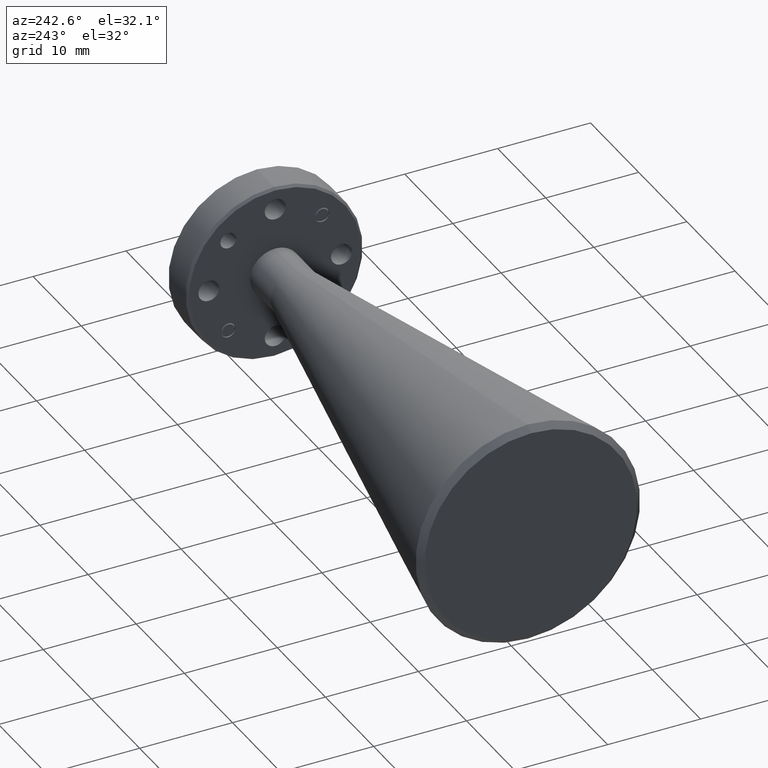
[diagram: clean part render]
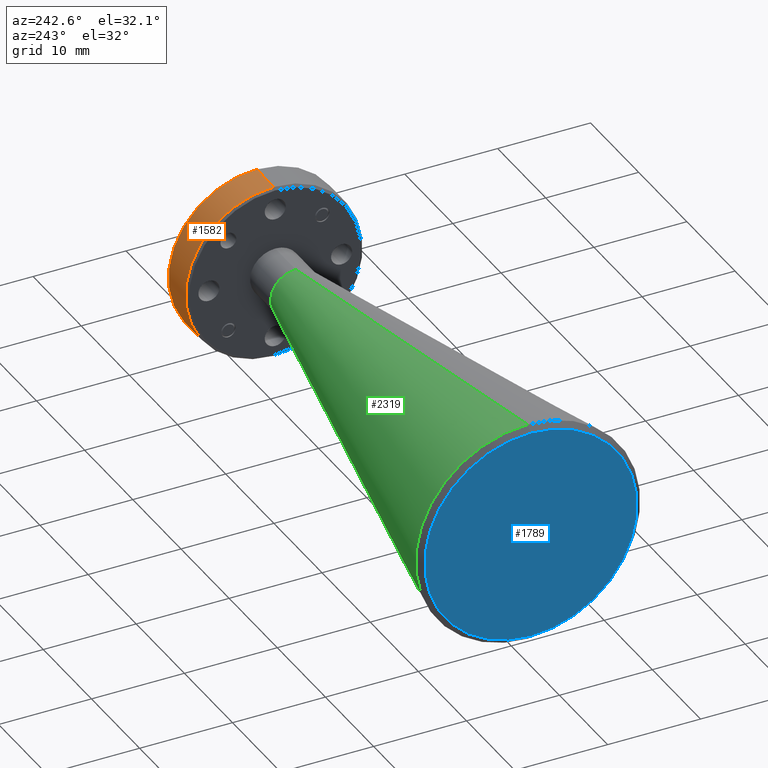
[diagram: same view with three faces highlighted in distinct colors, each labeled with its STEP entity id]
A machine part, auxiliary view with three faces highlighted in distinct colors.
Their STEP definitions:

[orange] entity #1582 — the highlighted cylindrical surface (partial cylindrical patch) has radius 9.525 mm, axis along (1, -0, -0).
#42 = AXIS2_PLACEMENT_3D ( 'NONE', #1292, #2041, #1854 ) ;
#125 = LINE ( 'NONE', #859, #965 ) ;
#168 = EDGE_LOOP ( 'NONE', ( #427, #176, #497, #2033 ) ) ;
#176 = ORIENTED_EDGE ( 'NONE', *, *, #1196, .T. ) ;
#191 = VERTEX_POINT ( 'NONE', #1648 ) ;
#222 = DIRECTION ( 'NONE',  ( 0.000000000000000000, 0.000000000000000000, -1.000000000000000000 ) ) ;
#427 = ORIENTED_EDGE ( 'NONE', *, *, #1452, .T. ) ;
#497 = ORIENTED_EDGE ( 'NONE', *, *, #1795, .T. ) ;
#618 = CIRCLE ( 'NONE', #42, 0.3749999999999999445 ) ;
#634 = CARTESIAN_POINT ( 'NONE',  ( 1.789620190425750046, 1.132380905805825178, 1.254287461640205992 ) ) ;
#647 = DIRECTION ( 'NONE',  ( 1.000000000000000000, -0.000000000000000000, -0.000000000000000000 ) ) ;
#829 = DIRECTION ( 'NONE',  ( 1.000000000000000000, -0.000000000000000000, -0.000000000000000000 ) ) ;
#859 = CARTESIAN_POINT ( 'NONE',  ( 1.789620190425750046, 1.132380905805825178, 1.629287461640205992 ) ) ;
#896 = CIRCLE ( 'NONE', #2093, 0.3749999999999999445 ) ;
#935 = VECTOR ( 'NONE', #647, 39.37007874015748143 ) ;
#965 = VECTOR ( 'NONE', #829, 39.37007874015748143 ) ;
#1196 = EDGE_CURVE ( 'NONE', #191, #1227, #125, .T. ) ;
#1217 = FACE_OUTER_BOUND ( 'NONE', #168, .T. ) ;
#1227 = VERTEX_POINT ( 'NONE', #2102 ) ;
#1292 = CARTESIAN_POINT ( 'NONE',  ( 1.639620190425750357, 1.132380905805825178, 1.254287461640205992 ) ) ;
#1301 = CARTESIAN_POINT ( 'NONE',  ( 1.779620190425750481, 1.132380905805825178, 1.254287461640205992 ) ) ;
#1452 = EDGE_CURVE ( 'NONE', #1563, #191, #618, .T. ) ;
#1563 = VERTEX_POINT ( 'NONE', #2119 ) ;
#1570 = LINE ( 'NONE', #2279, #935 ) ;
#1582 = ADVANCED_FACE ( 'NONE', ( #1217 ), #1934, .T. ) ;
#1648 = CARTESIAN_POINT ( 'NONE',  ( 1.639620190425750357, 1.132380905805825178, 1.629287461640205992 ) ) ;
#1709 = VERTEX_POINT ( 'NONE', #1779 ) ;
#1730 = DIRECTION ( 'NONE',  ( 0.000000000000000000, 0.000000000000000000, -1.000000000000000000 ) ) ;
#1779 = CARTESIAN_POINT ( 'NONE',  ( 1.779620190425750481, 1.132380905805825178, 0.8792874616402061028 ) ) ;
#1795 = EDGE_CURVE ( 'NONE', #1227, #1709, #896, .T. ) ;
#1854 = DIRECTION ( 'NONE',  ( 0.000000000000000000, 0.000000000000000000, 1.000000000000000000 ) ) ;
#1934 = CYLINDRICAL_SURFACE ( 'NONE', #2196, 0.3749999999999999445 ) ;
#2033 = ORIENTED_EDGE ( 'NONE', *, *, #2254, .F. ) ;
#2041 = DIRECTION ( 'NONE',  ( 1.000000000000000000, -0.000000000000000000, -0.000000000000000000 ) ) ;
#2093 = AXIS2_PLACEMENT_3D ( 'NONE', #1301, #2195, #222 ) ;
#2102 = CARTESIAN_POINT ( 'NONE',  ( 1.779620190425750481, 1.132380905805825178, 1.629287461640205992 ) ) ;
#2119 = CARTESIAN_POINT ( 'NONE',  ( 1.639620190425750357, 1.132380905805825178, 0.8792874616402061028 ) ) ;
#2129 = DIRECTION ( 'NONE',  ( 1.000000000000000000, -0.000000000000000000, -0.000000000000000000 ) ) ;
#2195 = DIRECTION ( 'NONE',  ( -1.000000000000000000, 0.000000000000000000, 0.000000000000000000 ) ) ;
#2196 = AXIS2_PLACEMENT_3D ( 'NONE', #634, #2129, #1730 ) ;
#2254 = EDGE_CURVE ( 'NONE', #1563, #1709, #1570, .T. ) ;
#2279 = CARTESIAN_POINT ( 'NONE',  ( 1.789620190425750046, 1.132380905805825178, 0.8792874616402061028 ) ) ;

[blue] entity #1789 — the highlighted planar face has unit normal (-1, 0, 0).
#149 = CIRCLE ( 'NONE', #1687, 0.4505000000000011218 ) ;
#198 = DIRECTION ( 'NONE',  ( 0.000000000000000000, 0.000000000000000000, 1.000000000000000000 ) ) ;
#344 = DIRECTION ( 'NONE',  ( 0.000000000000000000, 0.000000000000000000, 1.000000000000000000 ) ) ;
#416 = ORIENTED_EDGE ( 'NONE', *, *, #532, .T. ) ;
#454 = CARTESIAN_POINT ( 'NONE',  ( -0.4603798095742503982, 1.132380905805825178, 1.704787461640207225 ) ) ;
#524 = CARTESIAN_POINT ( 'NONE',  ( -0.4603798095742503982, 1.132380905805825178, 1.254287461640205992 ) ) ;
#529 = EDGE_CURVE ( 'NONE', #2019, #2335, #149, .T. ) ;
#532 = EDGE_CURVE ( 'NONE', #2335, #2019, #1620, .T. ) ;
#564 = PLANE ( 'NONE',  #1814 ) ;
#915 = FACE_OUTER_BOUND ( 'NONE', #1465, .T. ) ;
#960 = CARTESIAN_POINT ( 'NONE',  ( -0.4603798095742503982, 1.612880905805824883, 1.254287461640205992 ) ) ;
#1050 = DIRECTION ( 'NONE',  ( -1.000000000000000000, 0.000000000000000000, 0.000000000000000000 ) ) ;
#1448 = ORIENTED_EDGE ( 'NONE', *, *, #529, .T. ) ;
#1465 = EDGE_LOOP ( 'NONE', ( #1448, #416 ) ) ;
#1606 = DIRECTION ( 'NONE',  ( 0.000000000000000000, 0.000000000000000000, 1.000000000000000000 ) ) ;
#1620 = CIRCLE ( 'NONE', #1879, 0.4505000000000011218 ) ;
#1687 = AXIS2_PLACEMENT_3D ( 'NONE', #524, #1977, #344 ) ;
#1775 = CARTESIAN_POINT ( 'NONE',  ( -0.4603798095742503982, 1.132380905805825178, 0.8037874616402048700 ) ) ;
#1789 = ADVANCED_FACE ( 'NONE', ( #915 ), #564, .T. ) ;
#1814 = AXIS2_PLACEMENT_3D ( 'NONE', #960, #1825, #198 ) ;
#1825 = DIRECTION ( 'NONE',  ( -1.000000000000000000, 0.000000000000000000, 0.000000000000000000 ) ) ;
#1879 = AXIS2_PLACEMENT_3D ( 'NONE', #2299, #1050, #1606 ) ;
#1977 = DIRECTION ( 'NONE',  ( -1.000000000000000000, 0.000000000000000000, 0.000000000000000000 ) ) ;
#2019 = VERTEX_POINT ( 'NONE', #1775 ) ;
#2299 = CARTESIAN_POINT ( 'NONE',  ( -0.4603798095742503982, 1.132380905805825178, 1.254287461640205992 ) ) ;
#2335 = VERTEX_POINT ( 'NONE', #454 ) ;

[green] entity #2319 — the highlighted conical surface has half-angle 11 deg.
#16 = CIRCLE ( 'NONE', #2307, 0.1069999999999999840 ) ;
#121 = DIRECTION ( 'NONE',  ( 1.000000000000000000, -0.000000000000000000, -0.000000000000000000 ) ) ;
#126 = ORIENTED_EDGE ( 'NONE', *, *, #2349, .T. ) ;
#151 = CARTESIAN_POINT ( 'NONE',  ( 1.461111115390730797, 1.132380905805825178, 1.361287461640205976 ) ) ;
#156 = CONICAL_SURFACE ( 'NONE', #1959, 0.1069999999999999840, 0.1919862177193692176 ) ;
#242 = CARTESIAN_POINT ( 'NONE',  ( 1.461111115390730797, 1.132380905805825178, 1.254287461640205992 ) ) ;
#391 = VERTEX_POINT ( 'NONE', #1183 ) ;
#611 = CARTESIAN_POINT ( 'NONE',  ( 1.461111115390730797, 1.132380905805825178, 1.147287461640206008 ) ) ;
#641 = VERTEX_POINT ( 'NONE', #1669 ) ;
#740 = CIRCLE ( 'NONE', #2082, 0.4756176277526365515 ) ;
#763 = ORIENTED_EDGE ( 'NONE', *, *, #1153, .T. ) ;
#768 = VERTEX_POINT ( 'NONE', #611 ) ;
#931 = CARTESIAN_POINT ( 'NONE',  ( -0.4352621818216151905, 1.132380905805825178, 1.254287461640205992 ) ) ;
#945 = DIRECTION ( 'NONE',  ( 1.000000000000000000, -0.000000000000000000, -0.000000000000000000 ) ) ;
#954 = CARTESIAN_POINT ( 'NONE',  ( 1.461111115390730797, 1.132380905805825178, 1.361287461640205976 ) ) ;
#1005 = VECTOR ( 'NONE', #1685, 39.37007874015748854 ) ;
#1006 = VECTOR ( 'NONE', #1203, 39.37007874015748854 ) ;
#1011 = LINE ( 'NONE', #2227, #1006 ) ;
#1107 = EDGE_CURVE ( 'NONE', #1701, #641, #1698, .T. ) ;
#1153 = EDGE_CURVE ( 'NONE', #391, #641, #740, .T. ) ;
#1183 = CARTESIAN_POINT ( 'NONE',  ( -0.4352621818216151905, 1.132380905805825178, 0.7786698338875694958 ) ) ;
#1203 = DIRECTION ( 'NONE',  ( -0.9816271834476651970, 2.336736254363992547E-17, -0.1908089953765379210 ) ) ;
#1343 = ORIENTED_EDGE ( 'NONE', *, *, #1107, .F. ) ;
#1377 = DIRECTION ( 'NONE',  ( -1.000000000000000000, 0.000000000000000000, 0.000000000000000000 ) ) ;
#1427 = DIRECTION ( 'NONE',  ( 0.000000000000000000, 0.000000000000000000, -1.000000000000000000 ) ) ;
#1574 = EDGE_LOOP ( 'NONE', ( #1829, #126, #763, #1343 ) ) ;
#1629 = CARTESIAN_POINT ( 'NONE',  ( 1.461111115390730797, 1.132380905805825178, 1.254287461640205992 ) ) ;
#1669 = CARTESIAN_POINT ( 'NONE',  ( -0.4352621818216151905, 1.132380905805825178, 1.729905089392842488 ) ) ;
#1676 = DIRECTION ( 'NONE',  ( 0.000000000000000000, 0.000000000000000000, -1.000000000000000000 ) ) ;
#1685 = DIRECTION ( 'NONE',  ( -0.9816271834476651970, 0.000000000000000000, 0.1908089953765379210 ) ) ;
#1698 = LINE ( 'NONE', #954, #1005 ) ;
#1701 = VERTEX_POINT ( 'NONE', #151 ) ;
#1704 = DIRECTION ( 'NONE',  ( 0.000000000000000000, 0.000000000000000000, 1.000000000000000000 ) ) ;
#1714 = EDGE_CURVE ( 'NONE', #768, #1701, #16, .T. ) ;
#1829 = ORIENTED_EDGE ( 'NONE', *, *, #1714, .F. ) ;
#1896 = FACE_OUTER_BOUND ( 'NONE', #1574, .T. ) ;
#1959 = AXIS2_PLACEMENT_3D ( 'NONE', #242, #1377, #1704 ) ;
#2082 = AXIS2_PLACEMENT_3D ( 'NONE', #931, #945, #1676 ) ;
#2227 = CARTESIAN_POINT ( 'NONE',  ( 1.461111115390730797, 1.132380905805825178, 1.147287461640206008 ) ) ;
#2307 = AXIS2_PLACEMENT_3D ( 'NONE', #1629, #121, #1427 ) ;
#2319 = ADVANCED_FACE ( 'NONE', ( #1896 ), #156, .T. ) ;
#2349 = EDGE_CURVE ( 'NONE', #768, #391, #1011, .T. ) ;